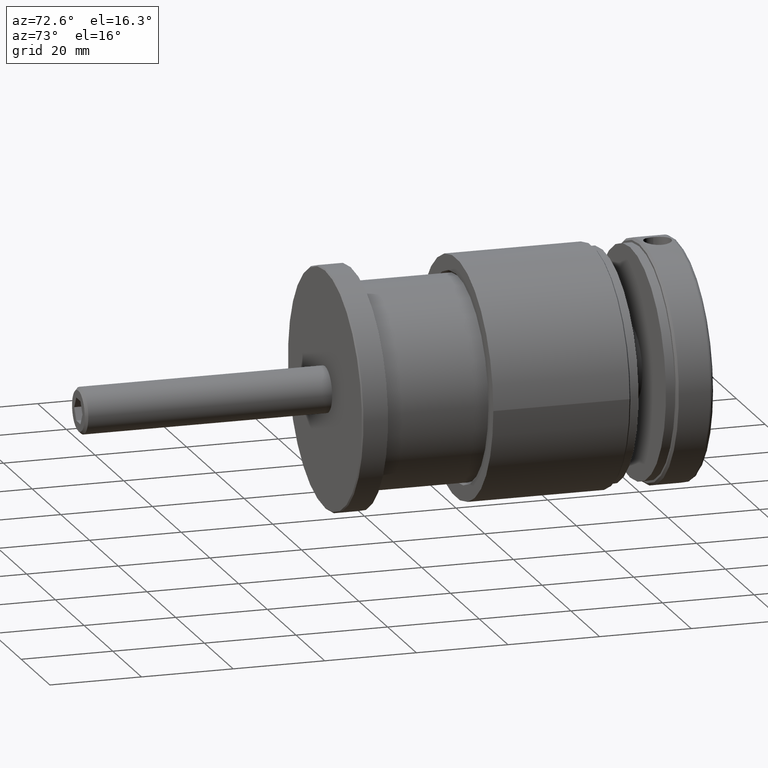
[diagram: clean part render]
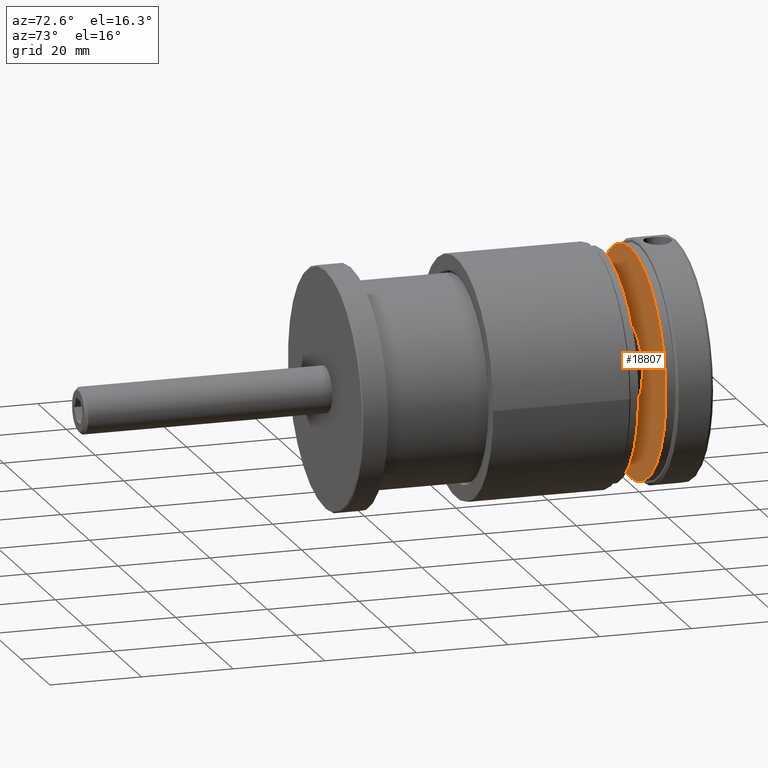
[diagram: same view with one face highlighted and labeled with its STEP entity id]
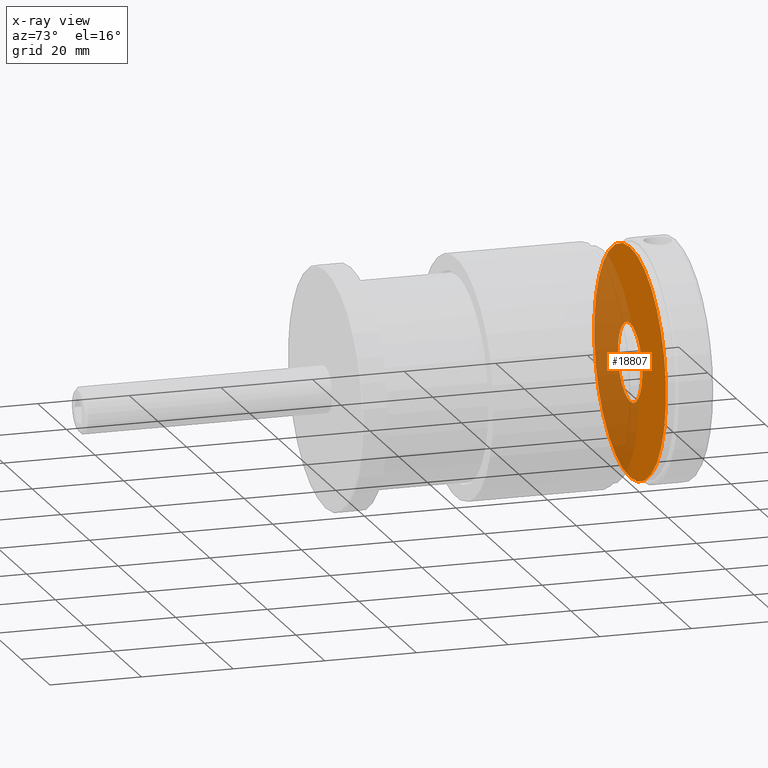
[diagram: x-ray of the same camera — body ghosted, the highlighted face saturated]
A machine part, auxiliary view. The second image highlights one B-rep face of the part: STEP entity #18807.
The next image is the same camera in x-ray: the body ghosted, the highlighted face saturated — about 46% of this face is hidden behind the body in this view.
In plain terms, the highlighted planar face has unit normal (0, -1, 0).
Its self-contained STEP definition (entity closure, byte-faithful):
#2711 = AXIS2_PLACEMENT_3D ( 'NONE', #9994, #4872, #23110 ) ;
#3141 = ORIENTED_EDGE ( 'NONE', *, *, #26378, .T. ) ;
#3733 = CARTESIAN_POINT ( 'NONE',  ( 0.000000000000000000, 2.000000000000000000, 0.000000000000000000 ) ) ;
#4872 = DIRECTION ( 'NONE',  ( -0.000000000000000000, -1.000000000000000000, -0.000000000000000000 ) ) ;
#5818 = VERTEX_POINT ( 'NONE', #23583 ) ;
#7409 = CARTESIAN_POINT ( 'NONE',  ( 0.000000000000000000, 2.000000000000000000, 0.000000000000000000 ) ) ;
#7527 = CIRCLE ( 'NONE', #29731, 25.00000000000022382 ) ;
#7627 = DIRECTION ( 'NONE',  ( 0.000000000000000000, 1.000000000000000000, 0.000000000000000000 ) ) ;
#7656 = EDGE_CURVE ( 'NONE', #14786, #23286, #32451, .T. ) ;
#7716 = ORIENTED_EDGE ( 'NONE', *, *, #7656, .T. ) ;
#8167 = EDGE_CURVE ( 'NONE', #5818, #27358, #10413, .T. ) ;
#9250 = CARTESIAN_POINT ( 'NONE',  ( 1.040949779275249943E-15, 2.000000000000000000, 8.500000000000000000 ) ) ;
#9575 = FACE_OUTER_BOUND ( 'NONE', #29895, .T. ) ;
#9680 = CARTESIAN_POINT ( 'NONE',  ( 0.000000000000000000, 2.000000000000000000, 0.000000000000000000 ) ) ;
#9994 = CARTESIAN_POINT ( 'NONE',  ( 0.000000000000000000, 2.000000000000000000, 0.000000000000000000 ) ) ;
#10363 = AXIS2_PLACEMENT_3D ( 'NONE', #15958, #13102, #33790 ) ;
#10413 = CIRCLE ( 'NONE', #2711, 8.500000000000076383 ) ;
#10460 = ORIENTED_EDGE ( 'NONE', *, *, #8167, .T. ) ;
#13102 = DIRECTION ( 'NONE',  ( -0.000000000000000000, -1.000000000000000000, -0.000000000000000000 ) ) ;
#14360 = EDGE_LOOP ( 'NONE', ( #10460, #3141 ) ) ;
#14786 = VERTEX_POINT ( 'NONE', #25768 ) ;
#15958 = CARTESIAN_POINT ( 'NONE',  ( 0.000000000000000000, 2.000000000000000000, 0.000000000000000000 ) ) ;
#16570 = AXIS2_PLACEMENT_3D ( 'NONE', #3733, #29501, #32458 ) ;
#17136 = CIRCLE ( 'NONE', #10363, 8.500000000000076383 ) ;
#18428 = ORIENTED_EDGE ( 'NONE', *, *, #19969, .T. ) ;
#18807 = ADVANCED_FACE ( 'NONE', ( #9575, #31195 ), #24587, .T. ) ;
#18851 = CARTESIAN_POINT ( 'NONE',  ( 0.000000000000000000, 2.000000000000000000, -25.00000000000000000 ) ) ;
#19969 = EDGE_CURVE ( 'NONE', #23286, #14786, #7527, .T. ) ;
#22375 = AXIS2_PLACEMENT_3D ( 'NONE', #9680, #33072, #22923 ) ;
#22923 = DIRECTION ( 'NONE',  ( 0.000000000000000000, 0.000000000000000000, 1.000000000000000000 ) ) ;
#23110 = DIRECTION ( 'NONE',  ( 0.000000000000000000, 0.000000000000000000, 1.000000000000000000 ) ) ;
#23286 = VERTEX_POINT ( 'NONE', #18851 ) ;
#23583 = CARTESIAN_POINT ( 'NONE',  ( 0.000000000000000000, 2.000000000000000000, -8.500000000000000000 ) ) ;
#24587 = PLANE ( 'NONE',  #16570 ) ;
#25768 = CARTESIAN_POINT ( 'NONE',  ( 3.061616997868382648E-15, 2.000000000000000000, 25.00000000000000000 ) ) ;
#26378 = EDGE_CURVE ( 'NONE', #27358, #5818, #17136, .T. ) ;
#27358 = VERTEX_POINT ( 'NONE', #9250 ) ;
#28476 = DIRECTION ( 'NONE',  ( 0.000000000000000000, 0.000000000000000000, 1.000000000000000000 ) ) ;
#29501 = DIRECTION ( 'NONE',  ( 0.000000000000000000, 1.000000000000000000, 0.000000000000000000 ) ) ;
#29731 = AXIS2_PLACEMENT_3D ( 'NONE', #7409, #7627, #28476 ) ;
#29895 = EDGE_LOOP ( 'NONE', ( #18428, #7716 ) ) ;
#31195 = FACE_BOUND ( 'NONE', #14360, .T. ) ;
#32451 = CIRCLE ( 'NONE', #22375, 25.00000000000022382 ) ;
#32458 = DIRECTION ( 'NONE',  ( 0.000000000000000000, 0.000000000000000000, 1.000000000000000000 ) ) ;
#33072 = DIRECTION ( 'NONE',  ( 0.000000000000000000, 1.000000000000000000, 0.000000000000000000 ) ) ;
#33790 = DIRECTION ( 'NONE',  ( 0.000000000000000000, 0.000000000000000000, 1.000000000000000000 ) ) ;